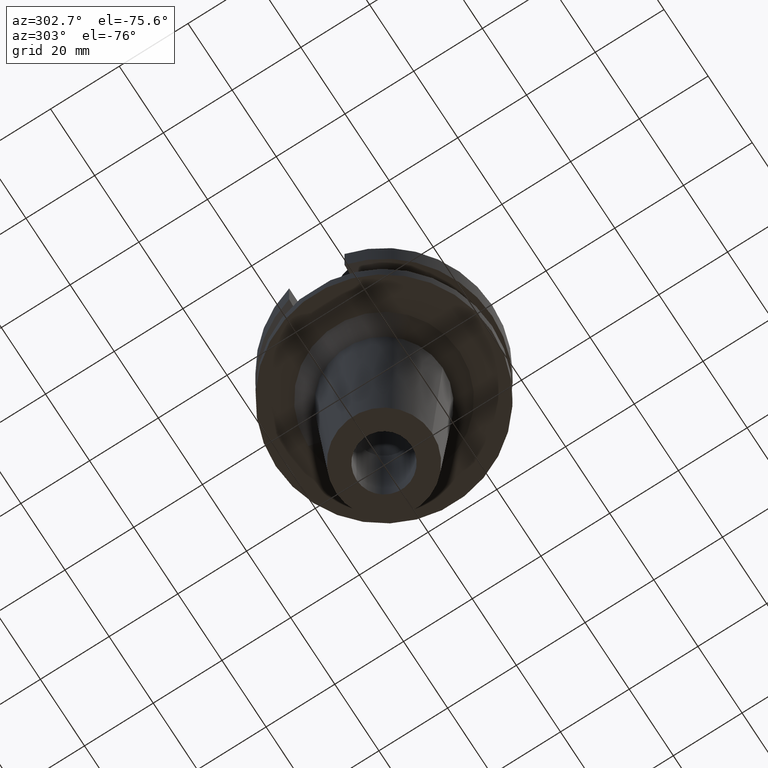
[diagram: clean part render]
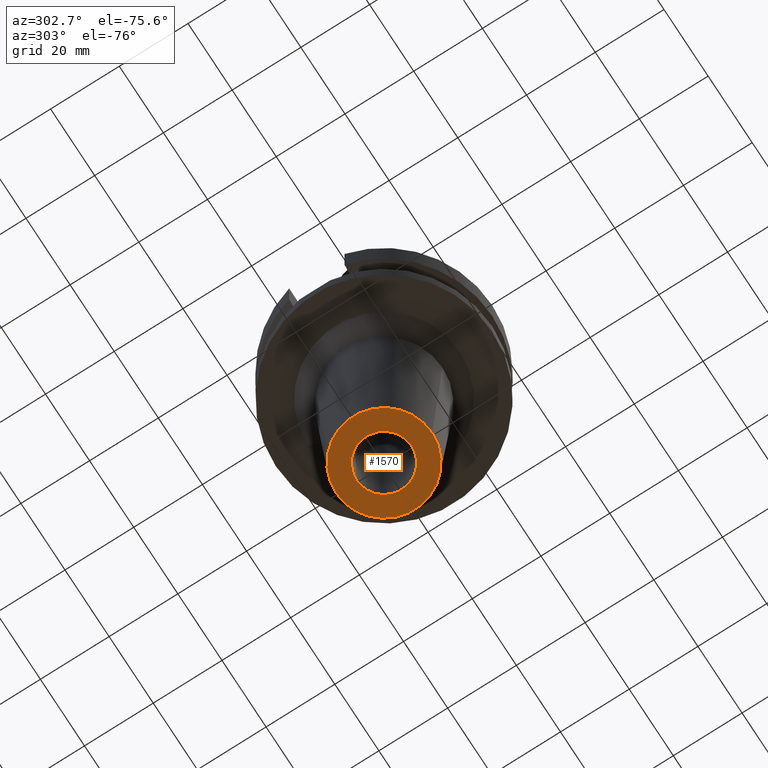
[diagram: same view with one face highlighted and labeled with its STEP entity id]
A machine part, auxiliary view. The second image highlights one B-rep face of the part: STEP entity #1570.
In plain terms, the highlighted planar face has unit normal (0, 0, -1).
Its self-contained STEP definition (entity closure, byte-faithful):
#705=CARTESIAN_POINT('',(0.E0,0.E0,-9.E1));
#706=DIRECTION('',(0.E0,0.E0,1.E0));
#707=DIRECTION('',(0.E0,-1.E0,0.E0));
#708=AXIS2_PLACEMENT_3D('',#705,#706,#707);
#713=CARTESIAN_POINT('',(0.E0,0.E0,-9.E1));
#714=DIRECTION('',(0.E0,0.E0,1.E0));
#715=DIRECTION('',(0.E0,1.E0,0.E0));
#716=AXIS2_PLACEMENT_3D('',#713,#714,#715);
#721=CARTESIAN_POINT('',(0.E0,2.120720862083E-14,-9.E1));
#722=DIRECTION('',(0.E0,0.E0,-1.E0));
#723=DIRECTION('',(0.E0,-1.E0,0.E0));
#724=AXIS2_PLACEMENT_3D('',#721,#722,#723);
#729=CARTESIAN_POINT('',(0.E0,2.120720862083E-14,-9.E1));
#730=DIRECTION('',(0.E0,0.E0,-1.E0));
#731=DIRECTION('',(0.E0,1.E0,0.E0));
#732=AXIS2_PLACEMENT_3D('',#729,#730,#731);
#955=CARTESIAN_POINT('',(0.E0,8.E0,-9.E1));
#956=VERTEX_POINT('',#955);
#957=CARTESIAN_POINT('',(0.E0,-8.E0,-9.E1));
#958=VERTEX_POINT('',#957);
#959=CARTESIAN_POINT('',(0.E0,-1.4E1,-9.E1));
#960=CARTESIAN_POINT('',(0.E0,1.4E1,-9.E1));
#961=VERTEX_POINT('',#959);
#962=VERTEX_POINT('',#960);
#1555=CARTESIAN_POINT('',(0.E0,0.E0,-9.E1));
#1556=DIRECTION('',(0.E0,0.E0,-1.E0));
#1557=DIRECTION('',(0.E0,-1.E0,0.E0));
#1558=AXIS2_PLACEMENT_3D('',#1555,#1556,#1557);
#1559=PLANE('',#1558);
#1560=ORIENTED_EDGE('',*,*,#1534,.T.);
#1561=ORIENTED_EDGE('',*,*,#1550,.T.);
#1562=EDGE_LOOP('',(#1560,#1561));
#1563=FACE_OUTER_BOUND('',#1562,.F.);
#1565=ORIENTED_EDGE('',*,*,#1564,.T.);
#1567=ORIENTED_EDGE('',*,*,#1566,.T.);
#1568=EDGE_LOOP('',(#1565,#1567));
#1569=FACE_BOUND('',#1568,.F.);
#709=CIRCLE('',#708,1.4E1);
#717=CIRCLE('',#716,1.4E1);
#725=CIRCLE('',#724,8.E0);
#733=CIRCLE('',#732,8.E0);
#1534=EDGE_CURVE('',#961,#962,#709,.T.);
#1550=EDGE_CURVE('',#962,#961,#717,.T.);
#1564=EDGE_CURVE('',#958,#956,#725,.T.);
#1566=EDGE_CURVE('',#956,#958,#733,.T.);
#1570=ADVANCED_FACE('',(#1563,#1569),#1559,.T.);